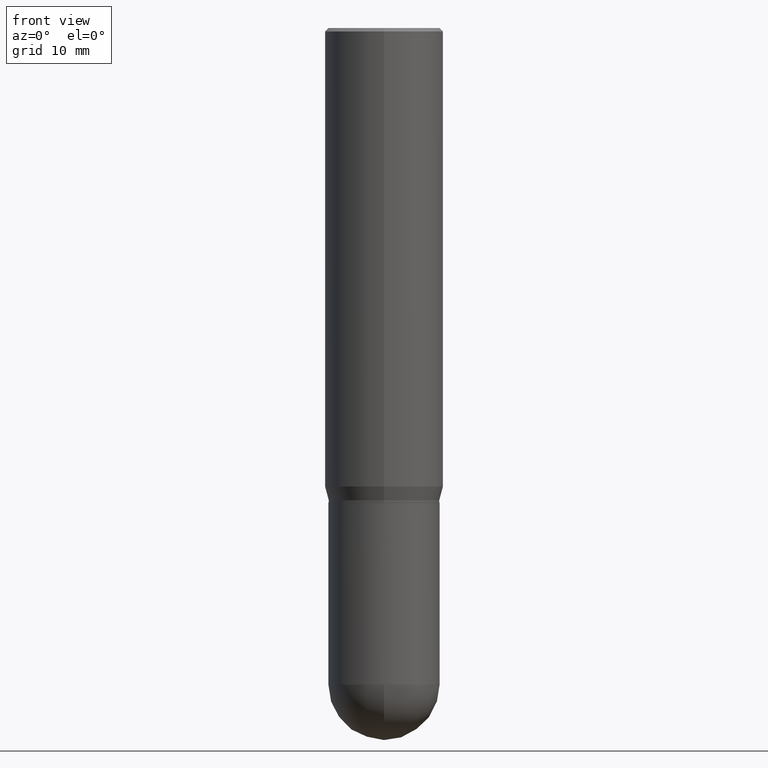
[diagram: clean part render]
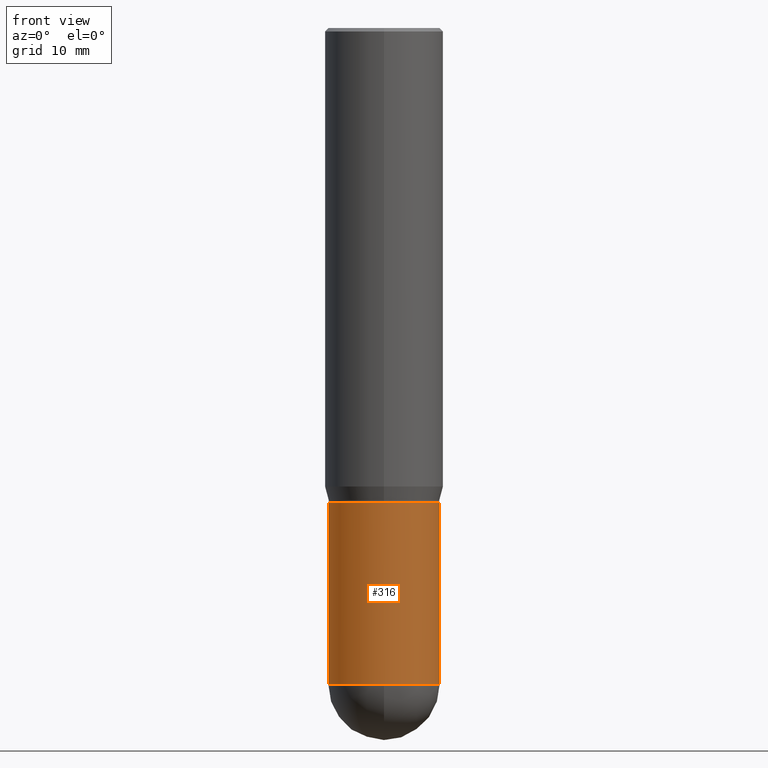
[diagram: same view with one face highlighted and labeled with its STEP entity id]
A machine part, front view. The second image highlights one B-rep face of the part: STEP entity #316.
In plain terms, the highlighted cylindrical surface (partial cylindrical patch) has radius 5.9538 mm, axis along (-0, 0, 1).
Its self-contained STEP definition (entity closure, byte-faithful):
#14 = AXIS2_PLACEMENT_3D ( 'NONE', #136, #347, #141 ) ;
#23 = AXIS2_PLACEMENT_3D ( 'NONE', #197, #35, #238 ) ;
#35 = DIRECTION ( 'NONE',  ( -2.445468806185136597E-29, 3.491481338843145583E-15, 1.000000000000000000 ) ) ;
#48 = FACE_OUTER_BOUND ( 'NONE', #57, .T. ) ;
#49 = VERTEX_POINT ( 'NONE', #468 ) ;
#57 = EDGE_LOOP ( 'NONE', ( #291, #162, #248, #335, #288 ) ) ;
#79 = EDGE_CURVE ( 'NONE', #217, #414, #83, .T. ) ;
#83 = CIRCLE ( 'NONE', #443, 0.2344000000000000250 ) ;
#101 = EDGE_CURVE ( 'NONE', #414, #490, #163, .T. ) ;
#110 = DIRECTION ( 'NONE',  ( -2.445468806185136597E-29, 3.491481338843145583E-15, 1.000000000000000000 ) ) ;
#119 = VECTOR ( 'NONE', #292, 39.37007874015748143 ) ;
#135 = CARTESIAN_POINT ( 'NONE',  ( 0.2344000000000000250, -9.956308185845112006E-15, -2.765600000000000502 ) ) ;
#136 = CARTESIAN_POINT ( 'NONE',  ( 6.763188530385615666E-29, -9.656040790704605504E-15, -2.765600000000000502 ) ) ;
#141 = DIRECTION ( 'NONE',  ( 1.000000000000000000, -6.982962677686269077E-15, 0.000000000000000000 ) ) ;
#162 = ORIENTED_EDGE ( 'NONE', *, *, #79, .T. ) ;
#163 = CIRCLE ( 'NONE', #14, 0.2344000000000000250 ) ;
#197 = CARTESIAN_POINT ( 'NONE',  ( 4.890937612370273754E-29, -6.982962677686291954E-15, -2.000000000000000444 ) ) ;
#206 = CARTESIAN_POINT ( 'NONE',  ( 0.000000000000000000, 0.000000000000000000, 0.000000000000000000 ) ) ;
#217 = VERTEX_POINT ( 'NONE', #351 ) ;
#218 = EDGE_CURVE ( 'NONE', #494, #49, #364, .T. ) ;
#231 = EDGE_CURVE ( 'NONE', #217, #494, #274, .T. ) ;
#238 = DIRECTION ( 'NONE',  ( 1.000000000000000000, -6.982962677686265922E-15, 0.000000000000000000 ) ) ;
#247 = LINE ( 'NONE', #485, #119 ) ;
#248 = ORIENTED_EDGE ( 'NONE', *, *, #101, .T. ) ;
#274 = LINE ( 'NONE', #399, #340 ) ;
#282 = DIRECTION ( 'NONE',  ( 1.000000000000000000, -6.982962677686266711E-15, 4.876176775795936353E-29 ) ) ;
#288 = ORIENTED_EDGE ( 'NONE', *, *, #218, .F. ) ;
#290 = EDGE_CURVE ( 'NONE', #490, #49, #247, .T. ) ;
#291 = ORIENTED_EDGE ( 'NONE', *, *, #231, .F. ) ;
#292 = DIRECTION ( 'NONE',  ( -2.445468806185136877E-29, 3.491481338843145188E-15, 1.000000000000000000 ) ) ;
#316 = ADVANCED_FACE ( 'NONE', ( #48 ), #446, .T. ) ;
#330 = DIRECTION ( 'NONE',  ( -2.445468806185136597E-29, 3.491481338843145583E-15, 1.000000000000000000 ) ) ;
#332 = CARTESIAN_POINT ( 'NONE',  ( -1.665512172621607566E-15, -0.2344000000000097395, -2.765600000000000058 ) ) ;
#335 = ORIENTED_EDGE ( 'NONE', *, *, #290, .T. ) ;
#340 = VECTOR ( 'NONE', #397, 39.37007874015748143 ) ;
#347 = DIRECTION ( 'NONE',  ( -2.445468806185136597E-29, 3.491481338843145583E-15, 1.000000000000000000 ) ) ;
#351 = CARTESIAN_POINT ( 'NONE',  ( -0.2344000000000000250, -6.653989561573773518E-15, -2.765600000000000502 ) ) ;
#364 = CIRCLE ( 'NONE', #23, 0.2343999999999999972 ) ;
#377 = AXIS2_PLACEMENT_3D ( 'NONE', #206, #330, #282 ) ;
#397 = DIRECTION ( 'NONE',  ( -2.445468806185136877E-29, 3.491481338843145188E-15, 1.000000000000000000 ) ) ;
#399 = CARTESIAN_POINT ( 'NONE',  ( -0.2344000000000000250, 1.665512172621675013E-15, -1.152998385155750104E-29 ) ) ;
#414 = VERTEX_POINT ( 'NONE', #332 ) ;
#423 = CARTESIAN_POINT ( 'NONE',  ( 6.763188530385615666E-29, -9.656040790704605504E-15, -2.765600000000000502 ) ) ;
#427 = DIRECTION ( 'NONE',  ( 1.000000000000000000, -6.982962677686269077E-15, 0.000000000000000000 ) ) ;
#443 = AXIS2_PLACEMENT_3D ( 'NONE', #423, #110, #427 ) ;
#446 = CYLINDRICAL_SURFACE ( 'NONE', #377, 0.2344000000000000250 ) ;
#462 = CARTESIAN_POINT ( 'NONE',  ( -0.2343999999999999972, -6.653989561573773518E-15, -2.000000000000000444 ) ) ;
#468 = CARTESIAN_POINT ( 'NONE',  ( 0.2343999999999999972, -8.619769129335952076E-15, -2.000000000000000444 ) ) ;
#485 = CARTESIAN_POINT ( 'NONE',  ( 0.2344000000000000250, -1.636806451649661108E-15, 1.142975836246567575E-29 ) ) ;
#490 = VERTEX_POINT ( 'NONE', #135 ) ;
#494 = VERTEX_POINT ( 'NONE', #462 ) ;